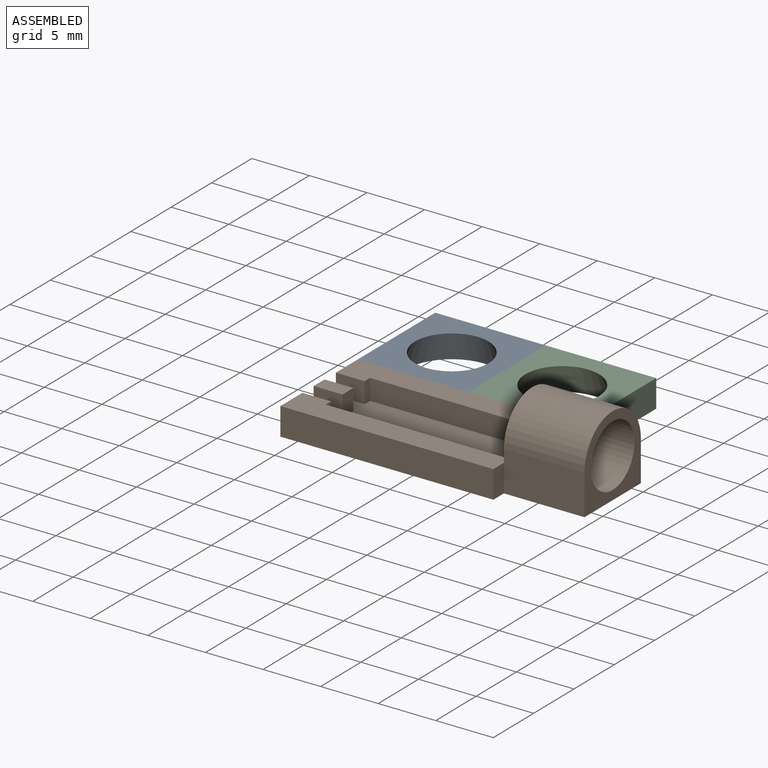
[diagram: assembled view]
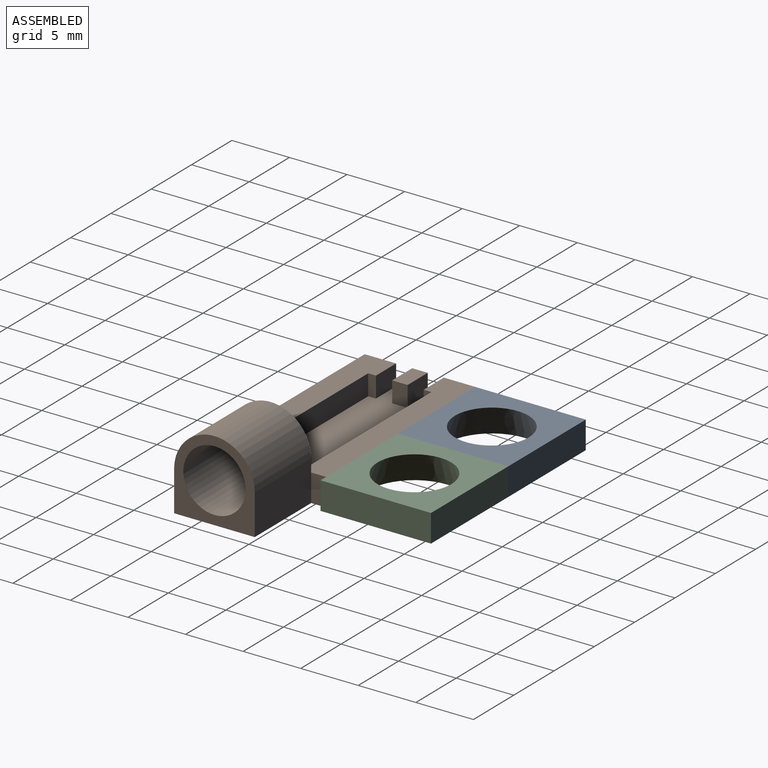
[diagram: assembled view, second angle]
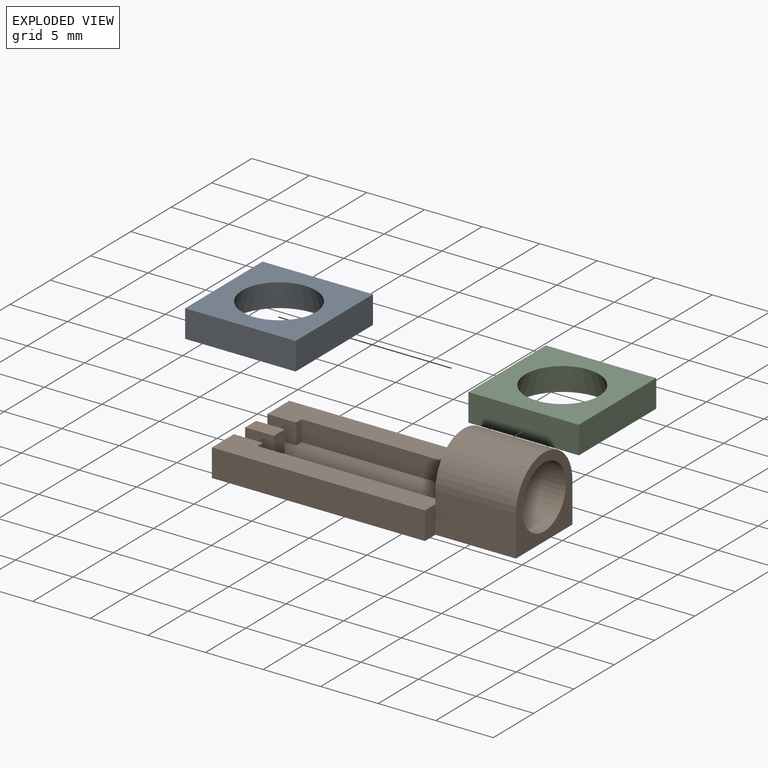
[diagram: exploded view]
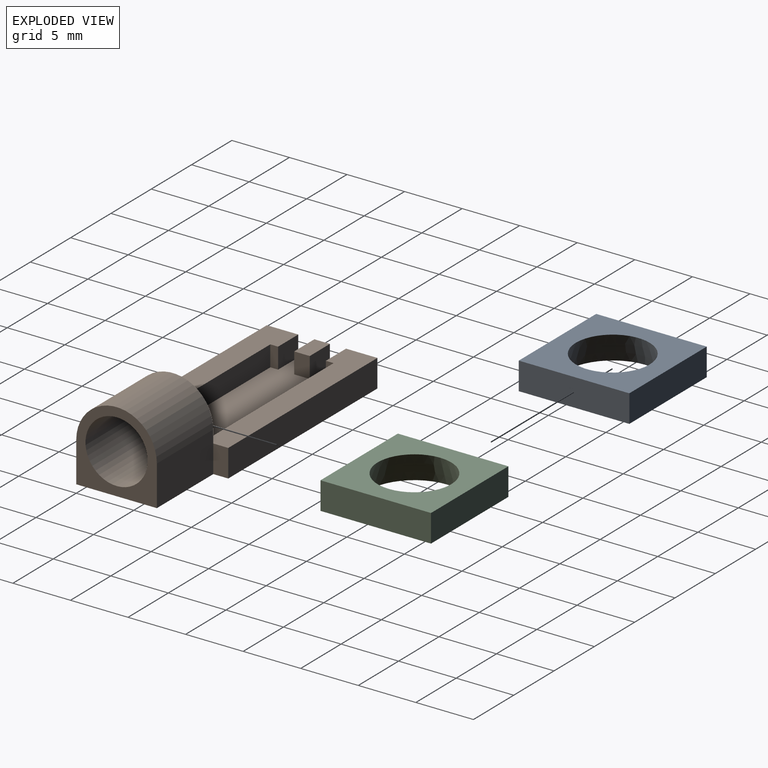
[diagram: exploded view, second angle]
ASSEMBLY  parts=3 mates=2
PART A: 7 faces, bbox 9.6x9.6x2.4 mm
  f0: plane 9.6x9.6mm, normal (0,0,1), area 41.9mm2, adj f2,f3,f4,f5,f6
  f1: plane 9.6x9.6mm, normal (0,0,-1), area 60mm2, adj f2,f3,f4,f5,f6
  f2: cone r=3.2mm half-angle=18.4deg, axis (0,0,1), area 57.2mm2, adj f0,f1
  f3: plane 9.6x2.4mm, normal (0,1,0), area 23mm2, adj f0,f1,f4,f5
  f4: plane 9.6x2.4mm, normal (-1,0,0), area 23mm2, adj f0,f1,f3,f6
  f5: plane 9.6x2.4mm, normal (1,0,0), area 23mm2, adj f0,f1,f3,f6
  f6: plane 9.6x2.4mm, normal (0,-1,0), area 23mm2, adj f0,f1,f4,f5
PART B: 25 faces, bbox 7x9.6x25.5 mm
  f0: plane 1.8x0.68mm, normal (0,0,-1), area 1.2mm2, adj f2,f12,f14,f23
  f1: plane 1.8x1.35mm, normal (0,0,-1), area 2.4mm2, adj f3,f12,f21,f24
  f2: plane 18.5x2.73mm, normal (1,0,0), area 39.6mm2, adj f0,f4,f5,f14,f17,f19,f23
  f3: plane 2.5x1.35mm, normal (1,0,0), area 3.4mm2, adj f1,f4,f21,f24
  f4: plane 9.6x2.4mm, normal (0,0,1), area 18mm2, adj f2,f3,f8,f12,f18,f19,f20,f21
  f5: plane 7x6.4mm, normal (0,0,1), area 13.9mm2, adj f2,f6,f7,f9,f10,f12,f14,f15
  f6: cylinder r=3.5mm len=7mm, axis (0,0,-1), area 77mm2, adj f5,f7,f10,f11
  f7: plane 7x3.5mm, normal (0,1,0), area 24.5mm2, adj f5,f6,f8,f11,f17
  f8: plane 25.5x9.6mm, normal (-1,0,0), area 226.6mm2, adj f4,f7,f10,f11,f16,f17,f18,f19
  f9: cylinder r=2.7mm len=7mm, axis (0,0,-1), area 118.8mm2, adj f5,f11
  f10: plane 7x3.5mm, normal (0,-1,0), area 24.5mm2, adj f5,f6,f8,f11,f16
  f11: plane 7x7mm, normal (0,0,-1), area 20.8mm2, adj f6,f7,f8,f9,f10
  f12: plane 18.5x5.5mm, normal (1,0,0), area 95mm2, adj f0,f1,f4,f5,f13,f14,f15,f21
  f13: plane 1.8x0.68mm, normal (0,0,-1), area 1.2mm2, adj f12,f15,f20,f22
  f14: plane 16x1.8mm, normal (0,-1,0), area 28.8mm2, adj f0,f2,f5,f12
  f15: plane 16x1.8mm, normal (0,1,0), area 28.8mm2, adj f5,f12,f13,f20
  f16: plane 2.4x1.3mm, normal (0,0,-1), area 3.1mm2, adj f8,f10,f18,f20
  f17: plane 2.4x1.3mm, normal (0,0,-1), area 3.1mm2, adj f2,f7,f8,f19
  f18: plane 18.5x2.4mm, normal (0,-1,0), area 44.4mm2, adj f4,f8,f16,f20
  f19: plane 18.5x2.4mm, normal (0,1,0), area 44.4mm2, adj f2,f4,f8,f17
  f20: plane 18.5x2.73mm, normal (1,0,0), area 39.6mm2, adj f4,f5,f13,f15,f16,f18,f22
  f21: plane 2.5x1.8mm, normal (0,-1,0), area 4.5mm2, adj f1,f3,f4,f12
  f22: plane 2.5x1.8mm, normal (0,1,0), area 4.5mm2, adj f4,f12,f13,f20
  f23: plane 2.5x1.8mm, normal (0,-1,0), area 4.5mm2, adj f0,f2,f4,f12
  f24: plane 2.5x1.8mm, normal (0,1,0), area 4.5mm2, adj f1,f3,f4,f12
PART C: same geometry as A
PLACE A rot(axis=(0.71,-0.71,0),180deg) t=(25.94,16.35,9.12)mm
PLACE B rot(axis=(0,-1,0),90deg) t=(14.64,6.75,10.22)mm
PLACE C rot(axis=(0,-1,0),180deg) t=(3.54,-15.65,9.12)mm
MATE fastened A.f5 <-> B.f19  axis (0,-1,0) through (-10.86,11.55,7.92)mm
MATE fastened C.f5 <-> A.f6  axis (-1,0,0) through (-1.26,16.35,7.92)mm
